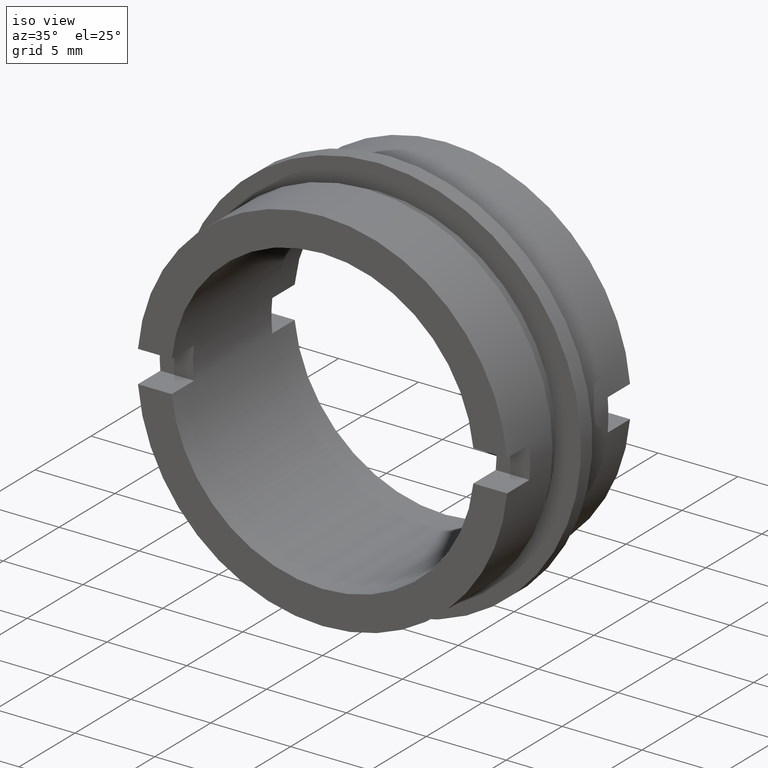
[diagram: clean part render]
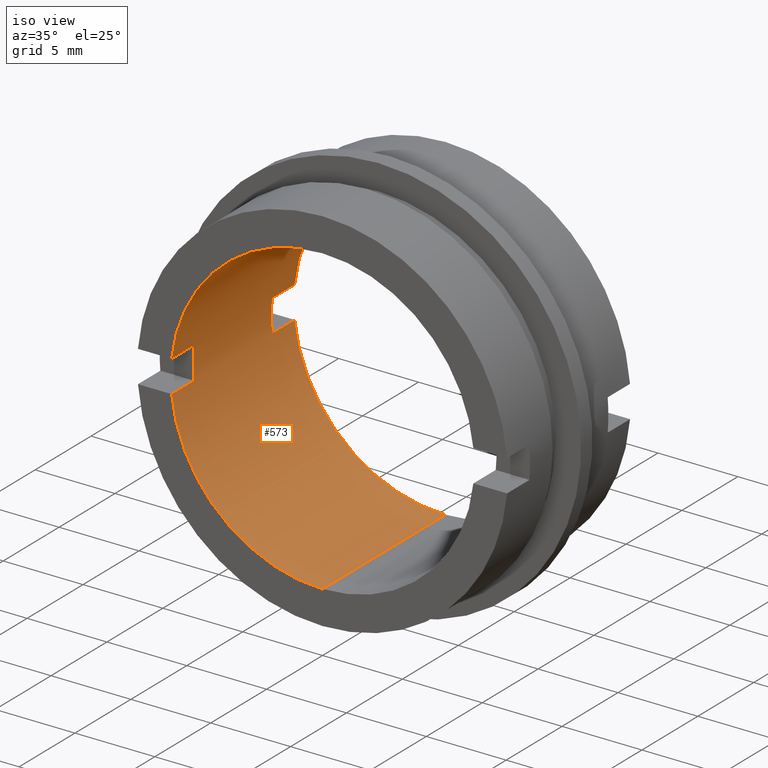
[diagram: same view with one face highlighted and labeled with its STEP entity id]
A machine part, iso view. The second image highlights one B-rep face of the part: STEP entity #573.
In plain terms, the highlighted cylindrical surface (partial cylindrical patch) has radius 9.5 mm, axis along (-0, 1, -0).
Its self-contained STEP definition (entity closure, byte-faithful):
#3 = DIRECTION ( 'NONE',  ( 0.0000000000000000000, -1.000000000000000000, 0.0000000000000000000 ) ) ;
#31 = EDGE_CURVE ( 'NONE', #951, #895, #417, .T. ) ;
#45 = VERTEX_POINT ( 'NONE', #521 ) ;
#63 = ORIENTED_EDGE ( 'NONE', *, *, #468, .F. ) ;
#79 = LINE ( 'NONE', #1147, #817 ) ;
#85 = CARTESIAN_POINT ( 'NONE',  ( 0.0000000000000000000, 9.000000000000000000, 0.0000000000000000000 ) ) ;
#111 = DIRECTION ( 'NONE',  ( 0.0000000000000000000, 0.0000000000000000000, 1.000000000000000000 ) ) ;
#114 = VECTOR ( 'NONE', #1127, 1000.000000000000000 ) ;
#132 = EDGE_CURVE ( 'NONE', #461, #262, #79, .T. ) ;
#134 = DIRECTION ( 'NONE',  ( -0.0000000000000000000, 1.000000000000000000, -0.0000000000000000000 ) ) ;
#142 = ORIENTED_EDGE ( 'NONE', *, *, #276, .F. ) ;
#155 = VECTOR ( 'NONE', #871, 1000.000000000000000 ) ;
#157 = ORIENTED_EDGE ( 'NONE', *, *, #683, .F. ) ;
#172 = ORIENTED_EDGE ( 'NONE', *, *, #628, .F. ) ;
#178 = VERTEX_POINT ( 'NONE', #680 ) ;
#185 = DIRECTION ( 'NONE',  ( -0.0000000000000000000, 1.000000000000000000, -0.0000000000000000000 ) ) ;
#189 = AXIS2_PLACEMENT_3D ( 'NONE', #291, #860, #331 ) ;
#196 = ORIENTED_EDGE ( 'NONE', *, *, #833, .F. ) ;
#197 = CARTESIAN_POINT ( 'NONE',  ( 0.0000000000000000000, 11.00000000000000000, 0.0000000000000000000 ) ) ;
#200 = EDGE_CURVE ( 'NONE', #895, #928, #729, .T. ) ;
#204 = CIRCLE ( 'NONE', #189, 9.499999999999996400 ) ;
#233 = DIRECTION ( 'NONE',  ( 0.0000000000000000000, 0.0000000000000000000, 1.000000000000000000 ) ) ;
#243 = CIRCLE ( 'NONE', #703, 9.499999999999996400 ) ;
#246 = CARTESIAN_POINT ( 'NONE',  ( 0.0000000000000000000, 0.0000000000000000000, 0.0000000000000000000 ) ) ;
#247 = CARTESIAN_POINT ( 'NONE',  ( 1.163414459189985100E-015, 22.67749945107591400, -9.499999999999996400 ) ) ;
#260 = VECTOR ( 'NONE', #134, 1000.000000000000000 ) ;
#262 = VERTEX_POINT ( 'NONE', #493 ) ;
#274 = CARTESIAN_POINT ( 'NONE',  ( 0.0000000000000000000, 22.67749945107591400, 0.0000000000000000000 ) ) ;
#276 = EDGE_CURVE ( 'NONE', #973, #928, #491, .T. ) ;
#283 = CYLINDRICAL_SURFACE ( 'NONE', #948, 9.499999999999996400 ) ;
#284 = ORIENTED_EDGE ( 'NONE', *, *, #31, .T. ) ;
#287 = VERTEX_POINT ( 'NONE', #767 ) ;
#291 = CARTESIAN_POINT ( 'NONE',  ( 0.0000000000000000000, 0.0000000000000000000, 0.0000000000000000000 ) ) ;
#315 = CARTESIAN_POINT ( 'NONE',  ( -9.447221813845589000, 22.67749945107591400, 1.000000000000003100 ) ) ;
#319 = CARTESIAN_POINT ( 'NONE',  ( 0.0000000000000000000, 11.00000000000000000, 0.0000000000000000000 ) ) ;
#331 = DIRECTION ( 'NONE',  ( 0.0000000000000000000, 0.0000000000000000000, 1.000000000000000000 ) ) ;
#358 = VERTEX_POINT ( 'NONE', #481 ) ;
#370 = DIRECTION ( 'NONE',  ( -0.0000000000000000000, 1.000000000000000000, -0.0000000000000000000 ) ) ;
#417 = LINE ( 'NONE', #247, #155 ) ;
#419 = EDGE_LOOP ( 'NONE', ( #196, #284, #753, #142, #172, #775, #1058, #63, #945, #765, #479, #157 ) ) ;
#427 = CARTESIAN_POINT ( 'NONE',  ( 1.163414459189985100E-015, 11.00000000000000000, -9.499999999999996400 ) ) ;
#443 = VERTEX_POINT ( 'NONE', #740 ) ;
#445 = EDGE_CURVE ( 'NONE', #443, #784, #243, .T. ) ;
#461 = VERTEX_POINT ( 'NONE', #822 ) ;
#468 = EDGE_CURVE ( 'NONE', #178, #784, #476, .T. ) ;
#476 = LINE ( 'NONE', #998, #914 ) ;
#479 = ORIENTED_EDGE ( 'NONE', *, *, #884, .F. ) ;
#481 = CARTESIAN_POINT ( 'NONE',  ( -9.447221813845589000, 0.0000000000000000000, -1.000000000000000000 ) ) ;
#491 = LINE ( 'NONE', #927, #260 ) ;
#493 = CARTESIAN_POINT ( 'NONE',  ( -9.447221813845589000, 0.0000000000000000000, 1.000000000000000000 ) ) ;
#494 = AXIS2_PLACEMENT_3D ( 'NONE', #246, #693, #695 ) ;
#506 = LINE ( 'NONE', #315, #686 ) ;
#510 = DIRECTION ( 'NONE',  ( 0.0000000000000000000, -1.000000000000000000, 0.0000000000000000000 ) ) ;
#519 = DIRECTION ( 'NONE',  ( 0.0000000000000000000, 0.0000000000000000000, 1.000000000000000000 ) ) ;
#521 = CARTESIAN_POINT ( 'NONE',  ( -9.447221813845589000, 9.000000000000000000, 1.000000000000001100 ) ) ;
#573 = ADVANCED_FACE ( 'NONE', ( #1068 ), #283, .F. ) ;
#610 = CARTESIAN_POINT ( 'NONE',  ( 0.0000000000000000000, 1.999999999999998200, 0.0000000000000000000 ) ) ;
#615 = DIRECTION ( 'NONE',  ( -0.0000000000000000000, -1.000000000000000000, -0.0000000000000000000 ) ) ;
#628 = EDGE_CURVE ( 'NONE', #45, #973, #1106, .T. ) ;
#680 = CARTESIAN_POINT ( 'NONE',  ( 0.0000000000000000000, 0.0000000000000000000, 9.499999999999996400 ) ) ;
#683 = EDGE_CURVE ( 'NONE', #358, #287, #825, .T. ) ;
#686 = VECTOR ( 'NONE', #510, 1000.000000000000000 ) ;
#693 = DIRECTION ( 'NONE',  ( -0.0000000000000000000, 1.000000000000000000, -0.0000000000000000000 ) ) ;
#695 = DIRECTION ( 'NONE',  ( 0.0000000000000000000, 0.0000000000000000000, 1.000000000000000000 ) ) ;
#703 = AXIS2_PLACEMENT_3D ( 'NONE', #197, #737, #111 ) ;
#725 = AXIS2_PLACEMENT_3D ( 'NONE', #319, #857, #233 ) ;
#729 = CIRCLE ( 'NONE', #725, 9.499999999999996400 ) ;
#737 = DIRECTION ( 'NONE',  ( -0.0000000000000000000, 1.000000000000000000, -0.0000000000000000000 ) ) ;
#739 = CARTESIAN_POINT ( 'NONE',  ( -9.447221813845589000, 9.000000000000000000, -0.9999999999999974500 ) ) ;
#740 = CARTESIAN_POINT ( 'NONE',  ( -9.447221813845589000, 11.00000000000000000, 1.000000000000001300 ) ) ;
#753 = ORIENTED_EDGE ( 'NONE', *, *, #200, .T. ) ;
#765 = ORIENTED_EDGE ( 'NONE', *, *, #132, .F. ) ;
#767 = CARTESIAN_POINT ( 'NONE',  ( -9.447221813845587200, 2.000000000000000000, -0.9999999999999995600 ) ) ;
#775 = ORIENTED_EDGE ( 'NONE', *, *, #824, .F. ) ;
#784 = VERTEX_POINT ( 'NONE', #1028 ) ;
#790 = CARTESIAN_POINT ( 'NONE',  ( -9.447221813845587200, 22.67749945107591400, -0.9999999999999943400 ) ) ;
#800 = AXIS2_PLACEMENT_3D ( 'NONE', #610, #950, #519 ) ;
#817 = VECTOR ( 'NONE', #3, 1000.000000000000000 ) ;
#822 = CARTESIAN_POINT ( 'NONE',  ( -9.447221813845589000, 1.999999999999998200, 1.000000000000000200 ) ) ;
#824 = EDGE_CURVE ( 'NONE', #443, #45, #506, .T. ) ;
#825 = LINE ( 'NONE', #790, #114 ) ;
#833 = EDGE_CURVE ( 'NONE', #951, #358, #204, .T. ) ;
#847 = EDGE_CURVE ( 'NONE', #262, #178, #1122, .T. ) ;
#848 = CARTESIAN_POINT ( 'NONE',  ( 1.163414459189985100E-015, 0.0000000000000000000, -9.499999999999996400 ) ) ;
#857 = DIRECTION ( 'NONE',  ( -0.0000000000000000000, 1.000000000000000000, -0.0000000000000000000 ) ) ;
#860 = DIRECTION ( 'NONE',  ( -0.0000000000000000000, 1.000000000000000000, -0.0000000000000000000 ) ) ;
#871 = DIRECTION ( 'NONE',  ( -0.0000000000000000000, 1.000000000000000000, -0.0000000000000000000 ) ) ;
#884 = EDGE_CURVE ( 'NONE', #287, #461, #1020, .T. ) ;
#889 = DIRECTION ( 'NONE',  ( 0.0000000000000000000, 0.0000000000000000000, 1.000000000000000000 ) ) ;
#895 = VERTEX_POINT ( 'NONE', #427 ) ;
#914 = VECTOR ( 'NONE', #370, 1000.000000000000000 ) ;
#927 = CARTESIAN_POINT ( 'NONE',  ( -9.447221813845589000, 22.67749945107591400, -1.000000000000000000 ) ) ;
#928 = VERTEX_POINT ( 'NONE', #932 ) ;
#932 = CARTESIAN_POINT ( 'NONE',  ( -9.447221813845589000, 11.00000000000000000, -0.9999999999999978900 ) ) ;
#945 = ORIENTED_EDGE ( 'NONE', *, *, #847, .F. ) ;
#948 = AXIS2_PLACEMENT_3D ( 'NONE', #274, #185, #889 ) ;
#950 = DIRECTION ( 'NONE',  ( 0.0000000000000000000, 1.000000000000000000, 0.0000000000000000000 ) ) ;
#951 = VERTEX_POINT ( 'NONE', #848 ) ;
#973 = VERTEX_POINT ( 'NONE', #739 ) ;
#998 = CARTESIAN_POINT ( 'NONE',  ( 0.0000000000000000000, 22.67749945107591400, 9.499999999999996400 ) ) ;
#1020 = CIRCLE ( 'NONE', #800, 9.499999999999996400 ) ;
#1028 = CARTESIAN_POINT ( 'NONE',  ( 0.0000000000000000000, 11.00000000000000000, 9.499999999999996400 ) ) ;
#1058 = ORIENTED_EDGE ( 'NONE', *, *, #445, .T. ) ;
#1068 = FACE_OUTER_BOUND ( 'NONE', #419, .T. ) ;
#1106 = CIRCLE ( 'NONE', #1126, 9.499999999999996400 ) ;
#1122 = CIRCLE ( 'NONE', #494, 9.499999999999996400 ) ;
#1126 = AXIS2_PLACEMENT_3D ( 'NONE', #85, #615, #1137 ) ;
#1127 = DIRECTION ( 'NONE',  ( -0.0000000000000000000, 1.000000000000000000, -0.0000000000000000000 ) ) ;
#1137 = DIRECTION ( 'NONE',  ( 0.0000000000000000000, 0.0000000000000000000, -1.000000000000000000 ) ) ;
#1147 = CARTESIAN_POINT ( 'NONE',  ( -9.447221813845589000, 22.67749945107591400, 1.000000000000003800 ) ) ;